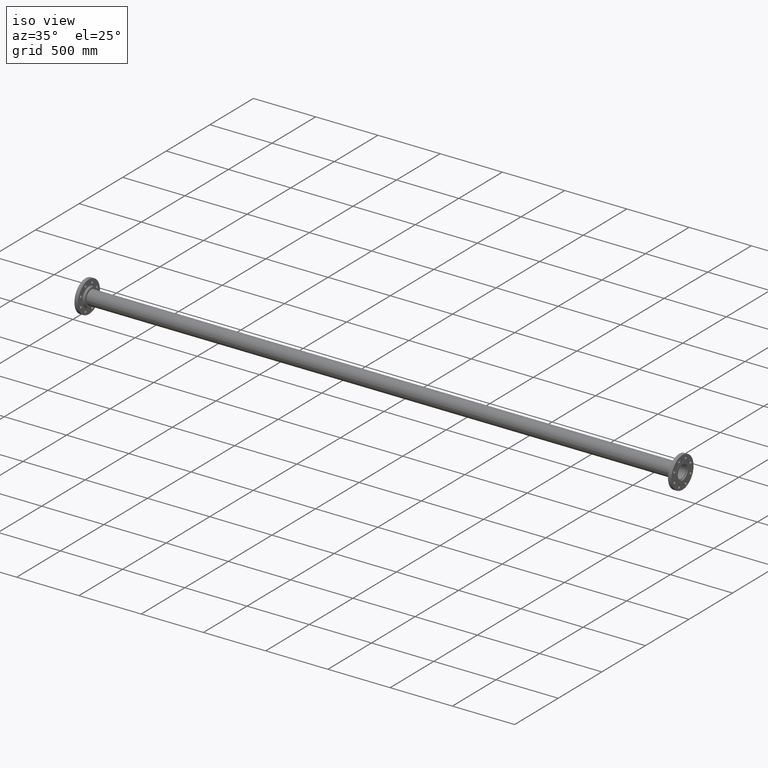
[diagram: clean part render]
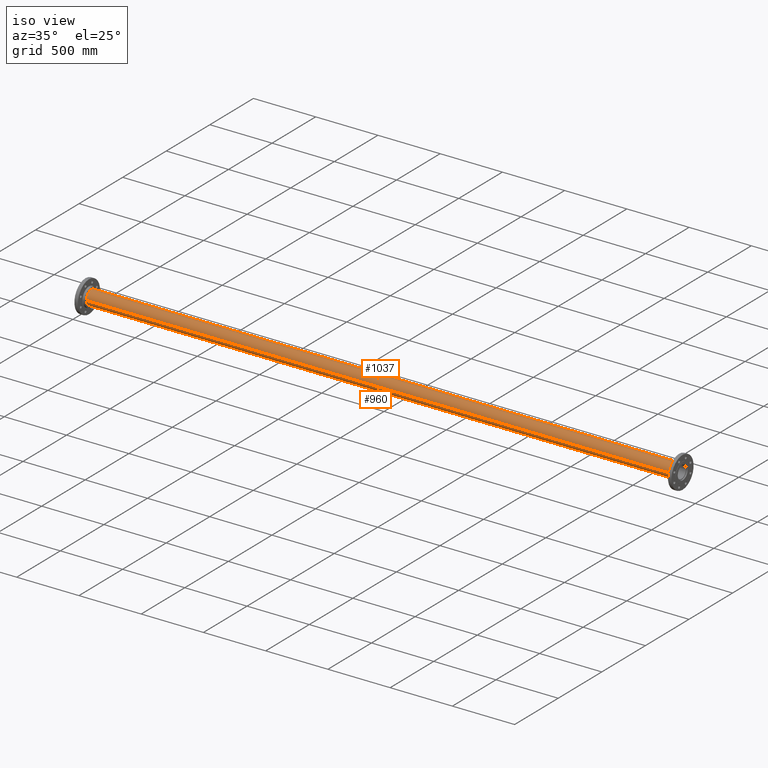
[diagram: same view with one multi-face feature highlighted, each face labeled with its STEP entity id]
A machine part, iso view. The highlighted faces form ONE feature: a constant-radius fillet chain: 2 tangent blend faces with common blend radius 57.15 mm. The faces share edges in the B-rep.
Their STEP definitions:
[1] entity #960 (Cylinder):
#40 = CARTESIAN_POINT ( 'NONE',  ( 2390.000000000000000, 8.780717549886521735E-13, 0.000000000000000000 ) ) ;
#59 = CIRCLE ( 'NONE', #107, 57.15000000000000568 ) ;
#61 = ORIENTED_EDGE ( 'NONE', *, *, #1170, .F. ) ;
#63 = EDGE_CURVE ( 'NONE', #497, #982, #973, .T. ) ;
#69 = CARTESIAN_POINT ( 'NONE',  ( 2390.000000000000000, 8.780717549886521735E-13, 0.000000000000000000 ) ) ;
#107 = AXIS2_PLACEMENT_3D ( 'NONE', #69, #1076, #958 ) ;
#112 = VECTOR ( 'NONE', #759, 1000.000000000000000 ) ;
#145 = DIRECTION ( 'NONE',  ( 1.000000000000000000, 1.836970198721029688E-16, 0.000000000000000000 ) ) ;
#261 = AXIS2_PLACEMENT_3D ( 'NONE', #40, #1225, #1413 ) ;
#313 = AXIS2_PLACEMENT_3D ( 'NONE', #1166, #145, #585 ) ;
#480 = VERTEX_POINT ( 'NONE', #519 ) ;
#492 = ORIENTED_EDGE ( 'NONE', *, *, #835, .T. ) ;
#497 = VERTEX_POINT ( 'NONE', #1302 ) ;
#501 = FACE_OUTER_BOUND ( 'NONE', #1006, .T. ) ;
#519 = CARTESIAN_POINT ( 'NONE',  ( -2390.000000000000000, 57.15000000000000568, 6.998856457127124130E-15 ) ) ;
#530 = EDGE_CURVE ( 'NONE', #497, #1311, #59, .T. ) ;
#553 = CARTESIAN_POINT ( 'NONE',  ( 2390.000000000000000, 57.15000000000088676, 6.998856457127124130E-15 ) ) ;
#583 = VECTOR ( 'NONE', #1327, 1000.000000000000000 ) ;
#585 = DIRECTION ( 'NONE',  ( 0.000000000000000000, 1.000000000000000000, 0.000000000000000000 ) ) ;
#671 = CIRCLE ( 'NONE', #313, 57.15000000000000568 ) ;
#759 = DIRECTION ( 'NONE',  ( -1.000000000000000000, -1.836970198721029688E-16, -0.000000000000000000 ) ) ;
#835 = EDGE_CURVE ( 'NONE', #982, #480, #671, .T. ) ;
#841 = ORIENTED_EDGE ( 'NONE', *, *, #530, .F. ) ;
#958 = DIRECTION ( 'NONE',  ( 0.000000000000000000, 1.000000000000000000, 0.000000000000000000 ) ) ;
#960 = ADVANCED_FACE ( 'NONE', ( #501 ), #1060, .T. ) ;
#973 = LINE ( 'NONE', #1445, #583 ) ;
#982 = VERTEX_POINT ( 'NONE', #1074 ) ;
#989 = LINE ( 'NONE', #553, #112 ) ;
#1006 = EDGE_LOOP ( 'NONE', ( #61, #841, #1160, #492 ) ) ;
#1028 = CARTESIAN_POINT ( 'NONE',  ( 2390.000000000000000, 57.15000000000087965, 6.998856457127176195E-15 ) ) ;
#1060 = CYLINDRICAL_SURFACE ( 'NONE', #261, 57.15000000000000568 ) ;
#1074 = CARTESIAN_POINT ( 'NONE',  ( -2390.000000000000000, -57.15000000000000568, 0.000000000000000000 ) ) ;
#1076 = DIRECTION ( 'NONE',  ( 1.000000000000000000, 1.836970198721029688E-16, 0.000000000000000000 ) ) ;
#1160 = ORIENTED_EDGE ( 'NONE', *, *, #63, .T. ) ;
#1166 = CARTESIAN_POINT ( 'NONE',  ( -2390.000000000000000, 0.000000000000000000, 0.000000000000000000 ) ) ;
#1170 = EDGE_CURVE ( 'NONE', #1311, #480, #989, .T. ) ;
#1225 = DIRECTION ( 'NONE',  ( -1.000000000000000000, -1.836970198721029688E-16, -0.000000000000000000 ) ) ;
#1302 = CARTESIAN_POINT ( 'NONE',  ( 2390.000000000000000, -57.14999999999912461, 0.000000000000000000 ) ) ;
#1311 = VERTEX_POINT ( 'NONE', #1028 ) ;
#1327 = DIRECTION ( 'NONE',  ( -1.000000000000000000, -1.836970198721029688E-16, -0.000000000000000000 ) ) ;
#1413 = DIRECTION ( 'NONE',  ( 0.000000000000000000, -1.000000000000000000, 0.000000000000000000 ) ) ;
#1445 = CARTESIAN_POINT ( 'NONE',  ( 2390.000000000000000, -57.14999999999912461, 0.000000000000000000 ) ) ;
[2] entity #1037 (Cylinder):
#63 = EDGE_CURVE ( 'NONE', #497, #982, #973, .T. ) ;
#67 = AXIS2_PLACEMENT_3D ( 'NONE', #1097, #1236, #431 ) ;
#112 = VECTOR ( 'NONE', #759, 1000.000000000000000 ) ;
#260 = DIRECTION ( 'NONE',  ( 1.000000000000000000, 1.836970198721029688E-16, 0.000000000000000000 ) ) ;
#280 = DIRECTION ( 'NONE',  ( 0.000000000000000000, 1.000000000000000000, 0.000000000000000000 ) ) ;
#290 = EDGE_CURVE ( 'NONE', #480, #982, #869, .T. ) ;
#431 = DIRECTION ( 'NONE',  ( 0.000000000000000000, -1.000000000000000000, 0.000000000000000000 ) ) ;
#480 = VERTEX_POINT ( 'NONE', #519 ) ;
#497 = VERTEX_POINT ( 'NONE', #1302 ) ;
#519 = CARTESIAN_POINT ( 'NONE',  ( -2390.000000000000000, 57.15000000000000568, 6.998856457127124130E-15 ) ) ;
#553 = CARTESIAN_POINT ( 'NONE',  ( 2390.000000000000000, 57.15000000000088676, 6.998856457127124130E-15 ) ) ;
#583 = VECTOR ( 'NONE', #1327, 1000.000000000000000 ) ;
#611 = AXIS2_PLACEMENT_3D ( 'NONE', #1255, #260, #1272 ) ;
#729 = FACE_OUTER_BOUND ( 'NONE', #1443, .T. ) ;
#734 = CIRCLE ( 'NONE', #1316, 57.15000000000000568 ) ;
#759 = DIRECTION ( 'NONE',  ( -1.000000000000000000, -1.836970198721029688E-16, -0.000000000000000000 ) ) ;
#834 = CARTESIAN_POINT ( 'NONE',  ( 2390.000000000000000, 8.780717549886521735E-13, 0.000000000000000000 ) ) ;
#869 = CIRCLE ( 'NONE', #611, 57.15000000000000568 ) ;
#902 = ORIENTED_EDGE ( 'NONE', *, *, #1170, .T. ) ;
#973 = LINE ( 'NONE', #1445, #583 ) ;
#982 = VERTEX_POINT ( 'NONE', #1074 ) ;
#989 = LINE ( 'NONE', #553, #112 ) ;
#1028 = CARTESIAN_POINT ( 'NONE',  ( 2390.000000000000000, 57.15000000000087965, 6.998856457127176195E-15 ) ) ;
#1037 = ADVANCED_FACE ( 'NONE', ( #729 ), #1199, .T. ) ;
#1074 = CARTESIAN_POINT ( 'NONE',  ( -2390.000000000000000, -57.15000000000000568, 0.000000000000000000 ) ) ;
#1097 = CARTESIAN_POINT ( 'NONE',  ( 2390.000000000000000, 8.780717549886521735E-13, 0.000000000000000000 ) ) ;
#1164 = ORIENTED_EDGE ( 'NONE', *, *, #290, .T. ) ;
#1170 = EDGE_CURVE ( 'NONE', #1311, #480, #989, .T. ) ;
#1199 = CYLINDRICAL_SURFACE ( 'NONE', #67, 57.15000000000000568 ) ;
#1201 = ORIENTED_EDGE ( 'NONE', *, *, #1473, .F. ) ;
#1236 = DIRECTION ( 'NONE',  ( -1.000000000000000000, -1.836970198721029688E-16, -0.000000000000000000 ) ) ;
#1255 = CARTESIAN_POINT ( 'NONE',  ( -2390.000000000000000, 0.000000000000000000, 0.000000000000000000 ) ) ;
#1272 = DIRECTION ( 'NONE',  ( 0.000000000000000000, 1.000000000000000000, 0.000000000000000000 ) ) ;
#1297 = DIRECTION ( 'NONE',  ( 1.000000000000000000, 1.836970198721029688E-16, 0.000000000000000000 ) ) ;
#1302 = CARTESIAN_POINT ( 'NONE',  ( 2390.000000000000000, -57.14999999999912461, 0.000000000000000000 ) ) ;
#1311 = VERTEX_POINT ( 'NONE', #1028 ) ;
#1316 = AXIS2_PLACEMENT_3D ( 'NONE', #834, #1297, #280 ) ;
#1327 = DIRECTION ( 'NONE',  ( -1.000000000000000000, -1.836970198721029688E-16, -0.000000000000000000 ) ) ;
#1424 = ORIENTED_EDGE ( 'NONE', *, *, #63, .F. ) ;
#1443 = EDGE_LOOP ( 'NONE', ( #1201, #902, #1164, #1424 ) ) ;
#1445 = CARTESIAN_POINT ( 'NONE',  ( 2390.000000000000000, -57.14999999999912461, 0.000000000000000000 ) ) ;
#1473 = EDGE_CURVE ( 'NONE', #1311, #497, #734, .T. ) ;